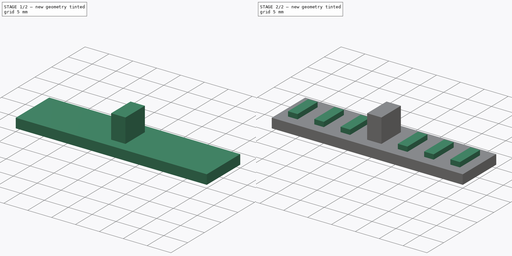
[diagram: build sequence overview — one tinted view per stage of 2, left to right]
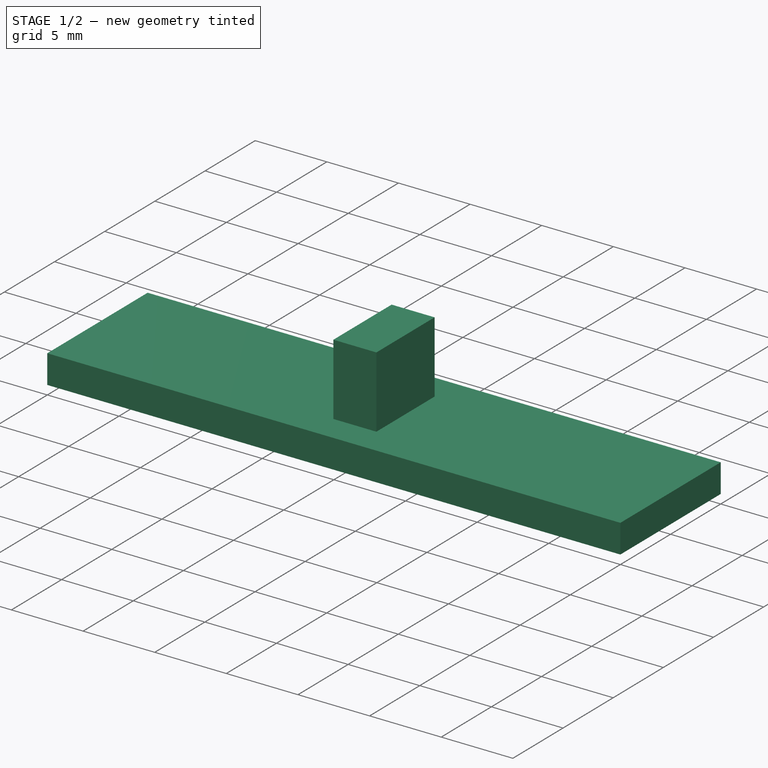
[diagram: stage 1 of 2 — iso view after this stage's code; geometry added in this stage tinted green]
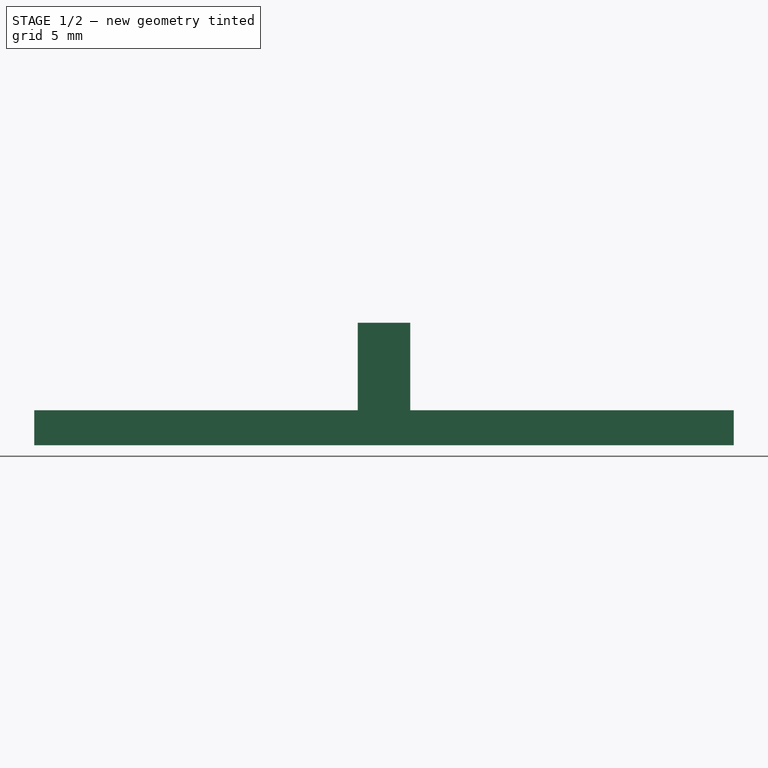
[diagram: stage 1 of 2 — front view after this stage's code; geometry added in this stage tinted green]
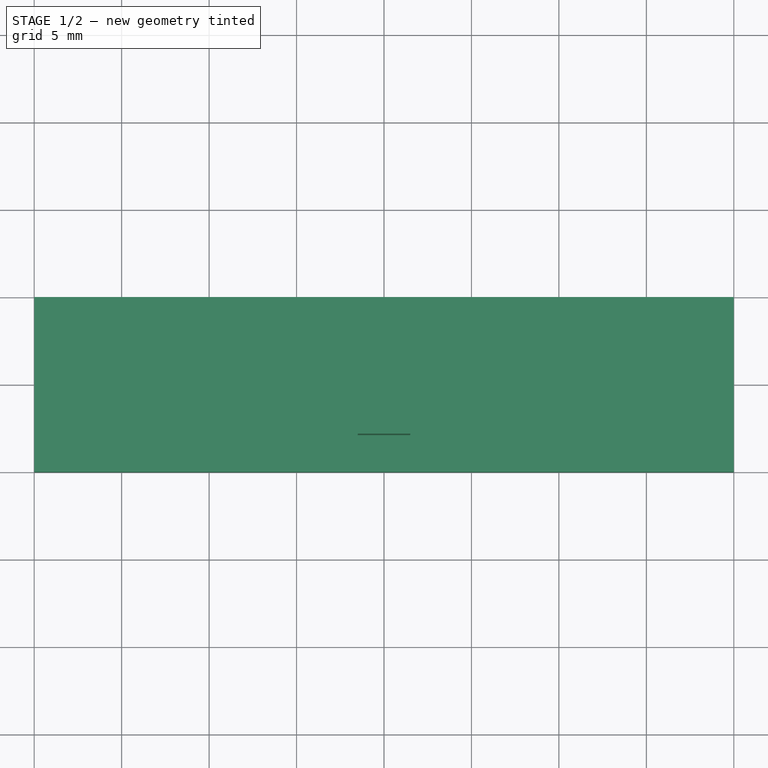
[diagram: stage 1 of 2 — top view after this stage's code; geometry added in this stage tinted green]
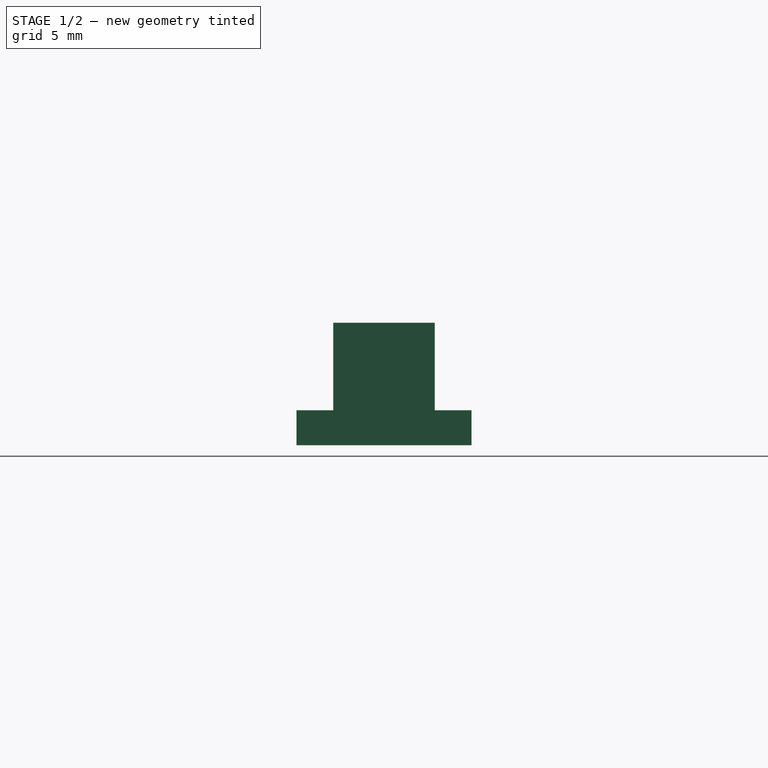
[diagram: stage 1 of 2 — right view after this stage's code; geometry added in this stage tinted green]
FCSTD DOCUMENT
Label: GT2BeltCouplerPlug
objects: Sketcher::SketchObject×3, PartDesign::Pad×3
note: 9 computed .brp shape members not serialized (recipe doc carries the construction recipe); baked Part::Feature solids carry a one-line shape summary decoded from their .brp

FEATURE [Sketcher::SketchObject] Sketch
  sketch-geometry (4):
    g0: LineSegment StartX=0 StartY=0 StartZ=0 EndX=40 EndY=0 EndZ=0
    g1: LineSegment StartX=40 StartY=0 StartZ=0 EndX=40 EndY=10 EndZ=0
    g2: LineSegment StartX=40 StartY=10 StartZ=0 EndX=0 EndY=10 EndZ=0
    g3: LineSegment StartX=0 StartY=10 StartZ=0 EndX=0 EndY=0 EndZ=0
  constraints (12):
    c: Coincident(g0,g1)
    c: Coincident(g1,g2)
    c: Coincident(g2,g3)
    c: Coincident(g3,g0)
    c: Horizontal(g0)
    c: Horizontal(g2)
    c: Vertical(g1)
    c: Vertical(g3)
    c: DistanceY(g3) = -10
    c: DistanceX(g2) = -40
    c: DistanceX(g0) = 0
    c: DistanceY(g0) = 0
FEATURE [PartDesign::Pad] Pad
  Length = 2
  MirroredExtent = false
  Sketch = -> Sketch
FEATURE [Sketcher::SketchObject] Sketch001
  Placement = pos=(0,0,2) rot=(0,0,1;0rad)
  Support = -> Pad [Face6]
  sketch-geometry (6):
    g0: LineSegment StartX=18.5 StartY=2.1 StartZ=0 EndX=18.5 EndY=5 EndZ=0
    g1: LineSegment StartX=18.5 StartY=5 StartZ=0 EndX=18.5 EndY=7.9 EndZ=0
    g2: LineSegment StartX=18.5 StartY=7.9 StartZ=0 EndX=21.5 EndY=7.9 EndZ=0
    g3: LineSegment StartX=21.5 StartY=7.9 StartZ=0 EndX=21.5 EndY=2.1 EndZ=0
    g4: LineSegment StartX=21.5 StartY=2.1 StartZ=0 EndX=20 EndY=2.1 EndZ=0
    g5: LineSegment StartX=20 StartY=2.1 StartZ=0 EndX=18.5 EndY=2.1 EndZ=0
  constraints (18):
    c: Vertical(g0)
    c: Coincident(g0,g1)
    c: Vertical(g1)
    c: Coincident(g1,g2)
    c: Horizontal(g2)
    c: Coincident(g2,g3)
    c: Vertical(g3)
    c: Coincident(g3,g4)
    c: Horizontal(g4)
    c: Coincident(g4,g5)
    c: Coincident(g5,g0)
    c: Horizontal(g5)
    c: Equal(g4,g5)
    c: Equal(g0,g1)
    c: DistanceY(g3) = -5.8
    c: DistanceX(g2) = 3
    c: DistanceX(g4) = 20
    c: DistanceY(g0) = 5
FEATURE [PartDesign::Pad] Pad001
  Length = 5
  MirroredExtent = false
  Sketch = -> Sketch001
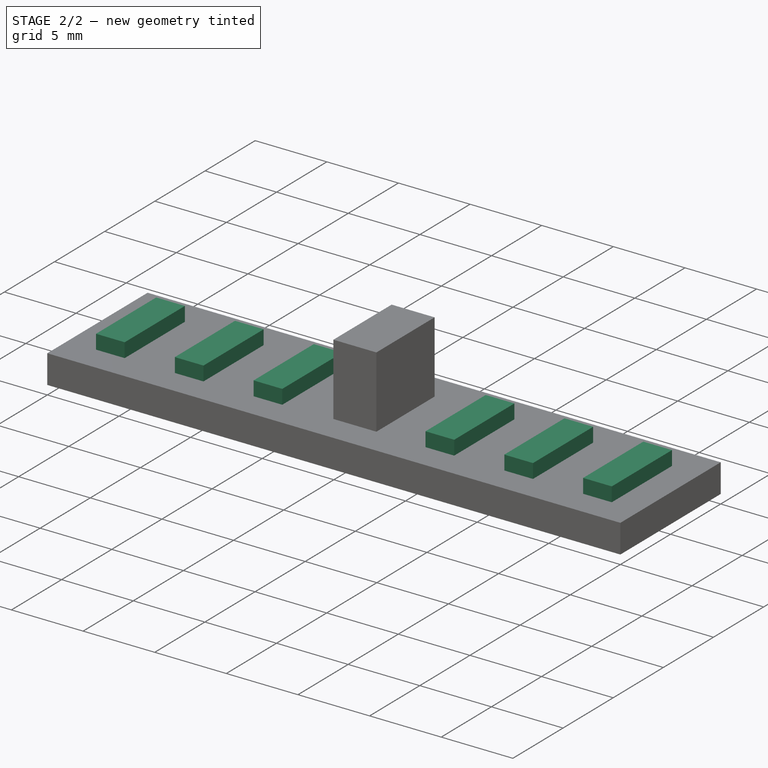
[diagram: stage 2 of 2 — iso view after this stage's code; geometry added in this stage tinted green]
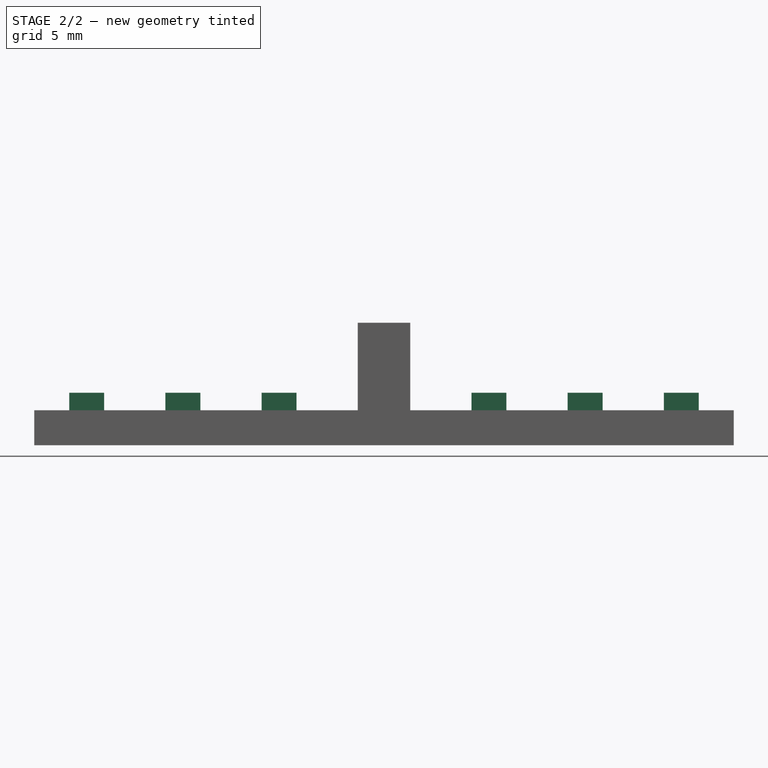
[diagram: stage 2 of 2 — front view after this stage's code; geometry added in this stage tinted green]
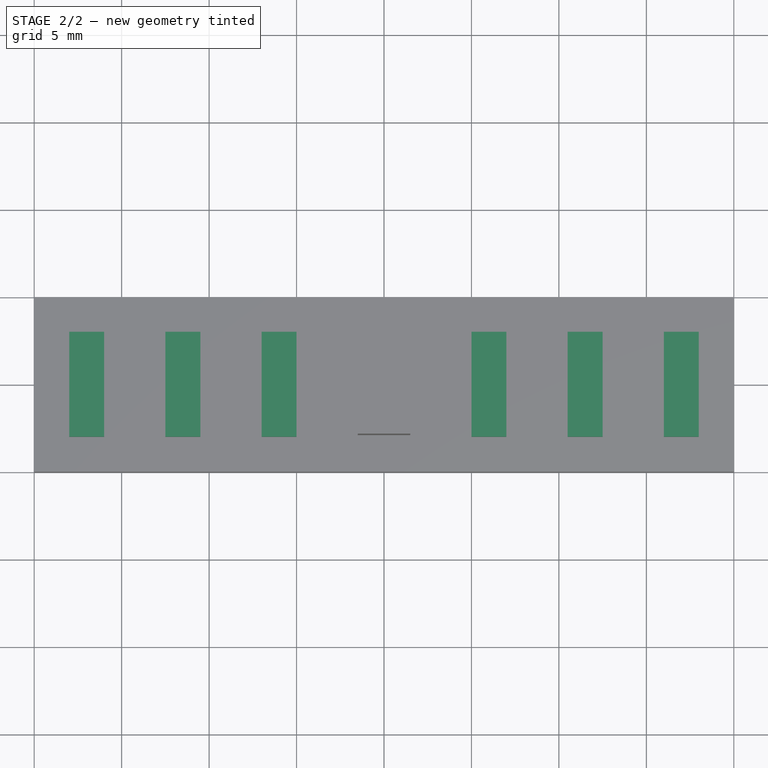
[diagram: stage 2 of 2 — top view after this stage's code; geometry added in this stage tinted green]
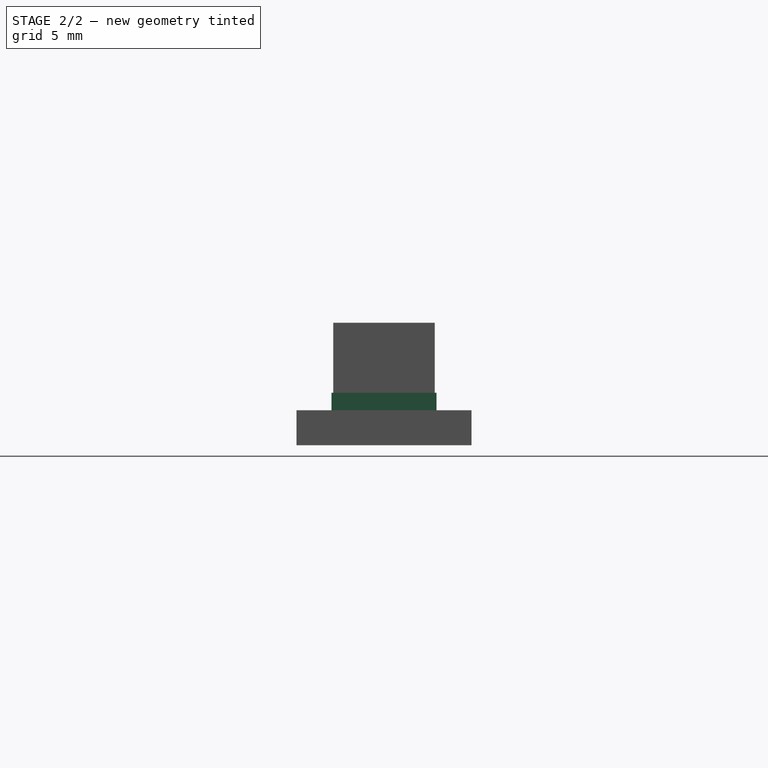
[diagram: stage 2 of 2 — right view after this stage's code; geometry added in this stage tinted green]
FEATURE [Sketcher::SketchObject] Sketch002
  Placement = pos=(0,0,2) rot=(0,0,1;0rad)
  Support = -> Pad001 [Face5]
  sketch-geometry (34):
    g0: LineSegment StartX=2 StartY=8 StartZ=0 EndX=4 EndY=8 EndZ=0
    g1: LineSegment StartX=4 StartY=8 StartZ=0 EndX=4 EndY=2 EndZ=0
    g2: LineSegment StartX=4 StartY=2 StartZ=0 EndX=2 EndY=2 EndZ=0
    g3: LineSegment StartX=2 StartY=2 StartZ=0 EndX=2 EndY=8 EndZ=0
    g4: LineSegment StartX=7.5 StartY=8 StartZ=0 EndX=9.5 EndY=8 EndZ=0
    g5: LineSegment StartX=9.5 StartY=8 StartZ=0 EndX=9.5 EndY=2 EndZ=0
    g6: LineSegment StartX=9.5 StartY=2 StartZ=0 EndX=7.5 EndY=2 EndZ=0
    g7: LineSegment StartX=7.5 StartY=2 StartZ=0 EndX=7.5 EndY=8 EndZ=0
    g8: LineSegment StartX=13 StartY=8 StartZ=0 EndX=15 EndY=8 EndZ=0
    g9: LineSegment StartX=15 StartY=8 StartZ=0 EndX=15 EndY=2 EndZ=0
    g10: LineSegment StartX=15 StartY=2 StartZ=0 EndX=13 EndY=2 EndZ=0
    g11: LineSegment StartX=13 StartY=2 StartZ=0 EndX=13 EndY=8 EndZ=0
    g12: LineSegment StartX=25 StartY=8 StartZ=0 EndX=27 EndY=8 EndZ=0
    g13: LineSegment StartX=27 StartY=8 StartZ=0 EndX=27 EndY=2 EndZ=0
    g14: LineSegment StartX=27 StartY=2 StartZ=0 EndX=25 EndY=2 EndZ=0
    g15: LineSegment StartX=25 StartY=2 StartZ=0 EndX=25 EndY=8 EndZ=0
    g16: LineSegment StartX=30.5 StartY=8 StartZ=0 EndX=32.5 EndY=8 EndZ=0
    g17: LineSegment StartX=32.5 StartY=8 StartZ=0 EndX=32.5 EndY=2 EndZ=0
    g18: LineSegment StartX=32.5 StartY=2 StartZ=0 EndX=30.5 EndY=2 EndZ=0
    g19: LineSegment StartX=30.5 StartY=2 StartZ=0 EndX=30.5 EndY=8 EndZ=0
    g20: LineSegment StartX=36 StartY=8 StartZ=0 EndX=38 EndY=8 EndZ=0
    g21: LineSegment StartX=38 StartY=8 StartZ=0 EndX=38 EndY=2 EndZ=0
    g22: LineSegment StartX=38 StartY=2 StartZ=0 EndX=36 EndY=2 EndZ=0
    g23: LineSegment StartX=36 StartY=2 StartZ=0 EndX=36 EndY=8 EndZ=0
    g24: LineSegment [constr] StartX=36 StartY=8 StartZ=0 EndX=32.5 EndY=8 EndZ=0
    g25: LineSegment [constr] StartX=30.5 StartY=8 StartZ=0 EndX=27 EndY=8 EndZ=0
    g26: LineSegment [constr] StartX=27 StartY=2 StartZ=0 EndX=30.5 EndY=2 EndZ=0
    g27: LineSegment [constr] StartX=32.5 StartY=2 StartZ=0 EndX=36 EndY=2 EndZ=0
    g28: LineSegment [constr] StartX=4 StartY=8 StartZ=0 EndX=7.5 EndY=8 EndZ=0
    g29: LineSegment [constr] StartX=9.5 StartY=8 StartZ=0 EndX=13 EndY=8 EndZ=0
    g30: LineSegment [constr] StartX=13 StartY=2 StartZ=0 EndX=9.5 EndY=2 EndZ=0
    g31: LineSegment [constr] StartX=7.5 StartY=2 StartZ=0 EndX=4 EndY=2 EndZ=0
    g32: LineSegment [constr] StartX=15 StartY=8 StartZ=0 EndX=25 EndY=8 EndZ=0
    g33: LineSegment [constr] StartX=15 StartY=2 StartZ=0 EndX=25 EndY=2 EndZ=0
  constraints (92):
    c: Coincident(g0,g1)
    c: Coincident(g1,g2)
    c: Coincident(g2,g3)
    c: Coincident(g3,g0)
    c: Horizontal(g0)
    c: Horizontal(g2)
    c: Vertical(g1)
    c: Vertical(g3)
    c: Coincident(g4,g5)
    c: Coincident(g5,g6)
    c: Coincident(g6,g7)
    c: Coincident(g7,g4)
    c: Horizontal(g4)
    c: Horizontal(g6)
    c: Vertical(g5)
    c: Vertical(g7)
    c: Coincident(g8,g9)
    c: Coincident(g9,g10)
    c: Coincident(g10,g11)
    c: Coincident(g11,g8)
    c: Horizontal(g8)
    c: Horizontal(g10)
    c: Vertical(g9)
    c: Vertical(g11)
    c: Coincident(g12,g13)
    c: Coincident(g13,g14)
    c: Coincident(g14,g15)
    c: Coincident(g15,g12)
    c: Horizontal(g12)
    c: Horizontal(g14)
    c: Vertical(g13)
    c: Vertical(g15)
    c: Coincident(g16,g17)
    c: Coincident(g17,g18)
    c: Coincident(g18,g19)
    c: Coincident(g19,g16)
    c: Horizontal(g16)
    c: Horizontal(g18)
    c: Vertical(g17)
    c: Vertical(g19)
    c: Coincident(g20,g21)
    c: Coincident(g21,g22)
    c: Coincident(g22,g23)
    c: Coincident(g23,g20)
    c: Horizontal(g20)
    c: Horizontal(g22)
    c: Vertical(g21)
    c: Vertical(g23)
    c: Coincident(g24,g20)
    c: Coincident(g24,g16)
    c: Coincident(g25,g16)
    c: Coincident(g25,g12)
    c: Coincident(g26,g13)
    c: Coincident(g26,g18)
    c: Coincident(g27,g17)
    c: Coincident(g27,g22)
    c: Horizontal(g24)
    c: Horizontal(g25)
    c: Horizontal(g26)
    c: Horizontal(g27)
    c: Coincident(g28,g0)
    c: Coincident(g28,g4)
    c: Horizontal(g28)
    c: Coincident(g29,g4)
    c: Coincident(g29,g8)
    c: Coincident(g30,g10)
    c: Coincident(g30,g5)
    c: Horizontal(g30)
    c: Coincident(g31,g6)
    c: Coincident(g31,g1)
    c: Horizontal(g31)
    c: Horizontal(g29)
    c: Coincident(g32,g8)
    c: Coincident(g32,g12)
    c: Horizontal(g32)
    c: Coincident(g33,g9)
    c: Coincident(g33,g14)
    c: Horizontal(g33)
    c: Equal(g28,g29)
    c: Equal(g29,g25)
    c: Equal(g25,g24)
    c: Equal(g0,g4)
    c: Equal(g4,g8)
    c: Equal(g8,g12)
    c: Equal(g12,g16)
    c: Equal(g16,g20)
    c: DistanceY(g3) = 6
    c: DistanceY(g2) = 2
    c: DistanceX(g2) = -2
    c: DistanceX(g2,g21) = 36
    c: DistanceX(g9,g14) = 10
    c: DistanceX(g2) = 2
FEATURE [PartDesign::Pad] Pad002
  Length = 1
  MirroredExtent = false
  Sketch = -> Sketch002
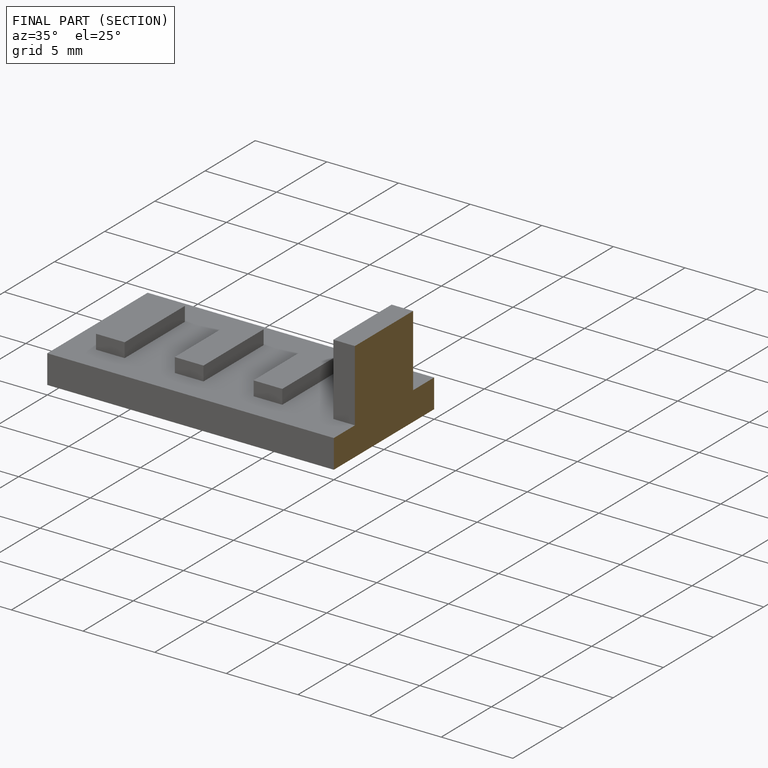
[diagram: finished part — half-section view (interior)]
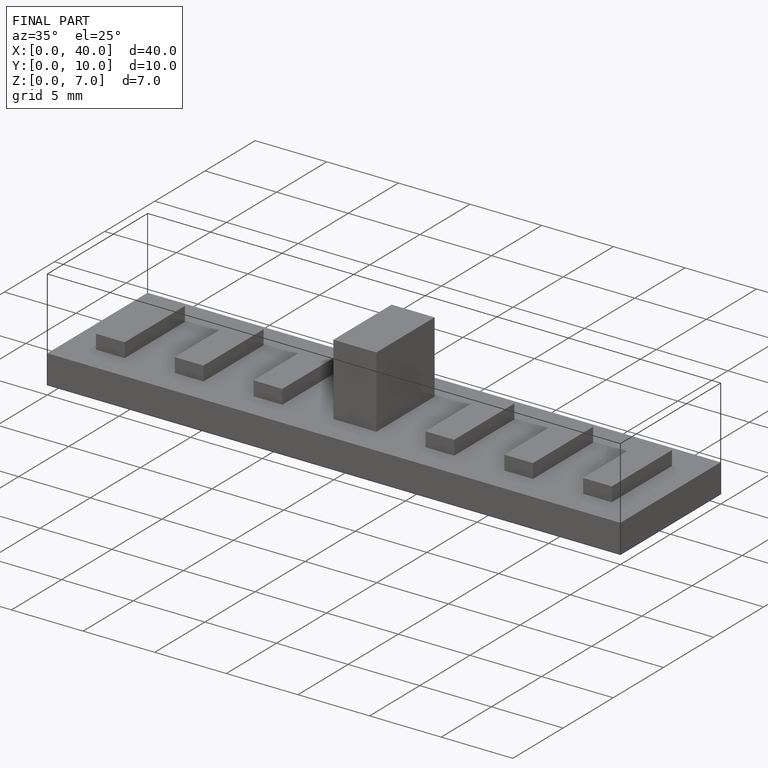
[diagram: finished part — iso view with bounding-box wireframe]
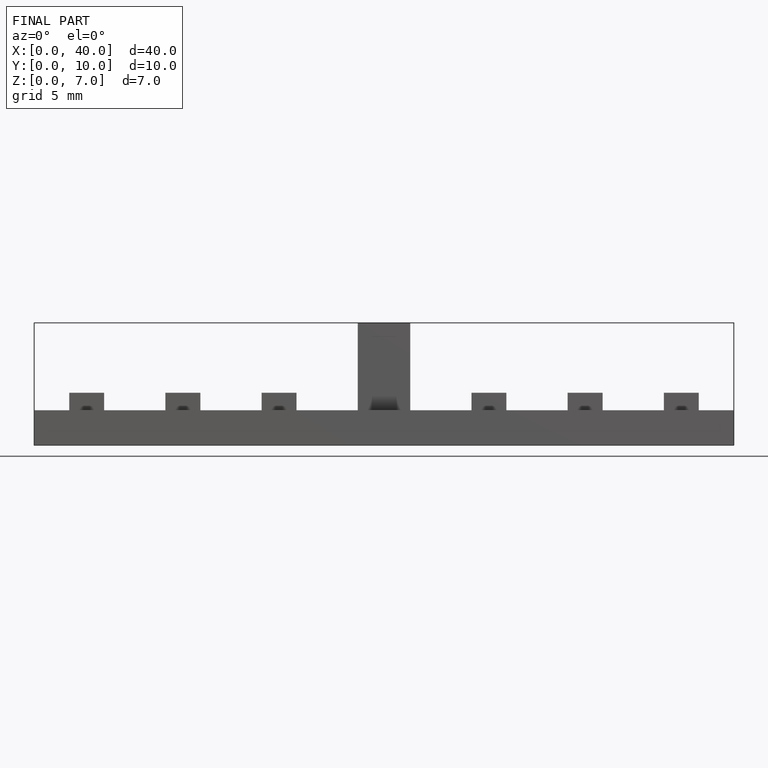
[diagram: finished part — front view with bounding-box wireframe]
